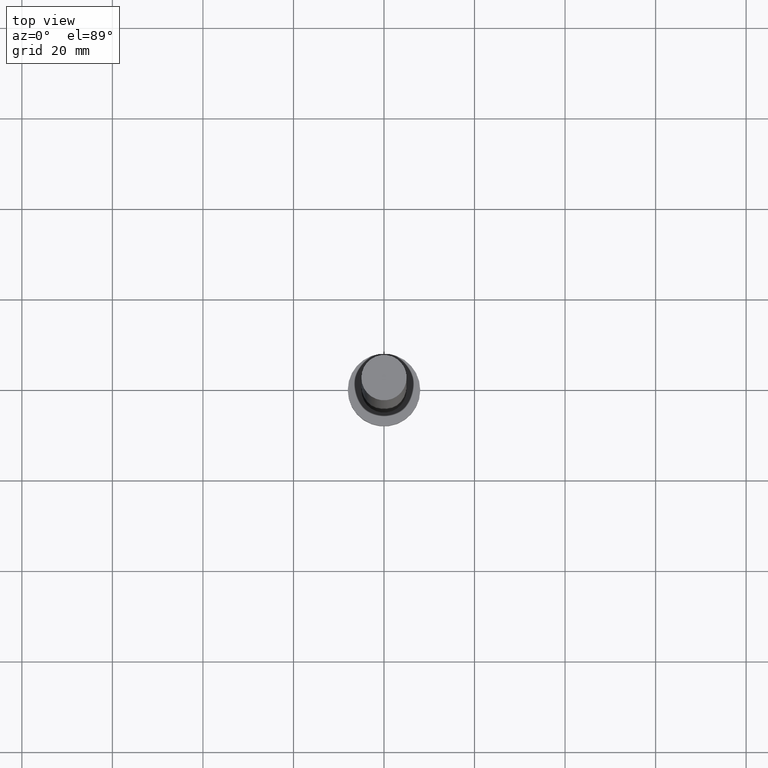
[diagram: clean part render]
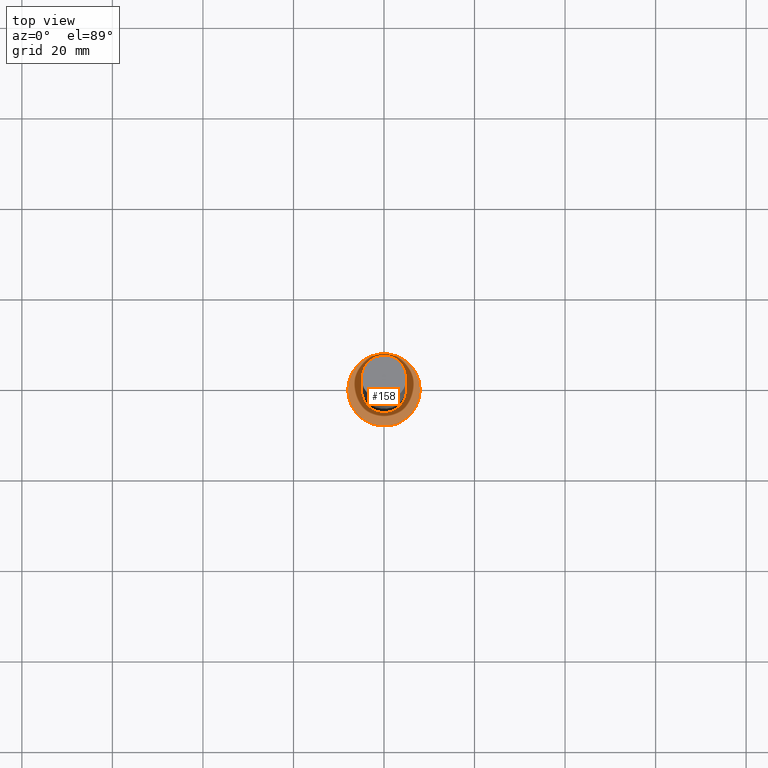
[diagram: same view with one face highlighted and labeled with its STEP entity id]
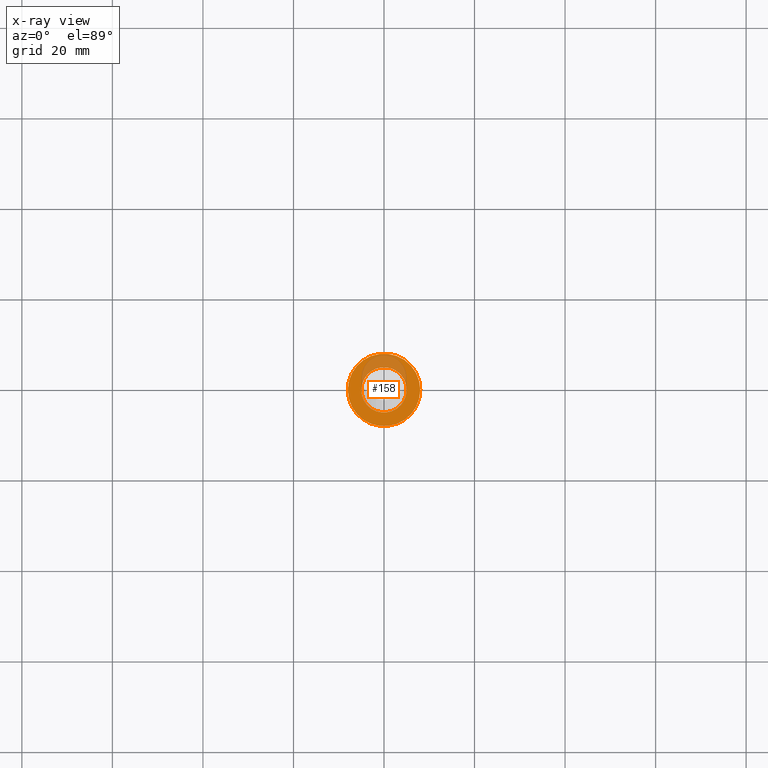
[diagram: x-ray of the same camera — body ghosted, the highlighted face saturated]
A machine part, top view. The second image highlights one B-rep face of the part: STEP entity #158.
The next image is the same camera in x-ray: the body ghosted, the highlighted face saturated — about 22% of this face is hidden behind the body in this view.
In plain terms, the highlighted planar face has unit normal (0, 0, 1).
Its self-contained STEP definition (entity closure, byte-faithful):
#15 = EDGE_CURVE ( 'NONE', #68, #213, #32, .T. ) ;
#32 = CIRCLE ( 'NONE', #108, 8.000000000000000000 ) ;
#33 = DIRECTION ( 'NONE',  ( 0.000000000000000000, 0.000000000000000000, 1.000000000000000000 ) ) ;
#43 = AXIS2_PLACEMENT_3D ( 'NONE', #159, #135, #137 ) ;
#47 = CIRCLE ( 'NONE', #242, 5.000000000000000000 ) ;
#48 = CARTESIAN_POINT ( 'NONE',  ( 0.000000000000000000, 0.000000000000000000, 5.000000000000000000 ) ) ;
#51 = EDGE_CURVE ( 'NONE', #152, #147, #107, .T. ) ;
#55 = CARTESIAN_POINT ( 'NONE',  ( 0.000000000000000000, 0.000000000000000000, 5.000000000000000000 ) ) ;
#62 = DIRECTION ( 'NONE',  ( 1.000000000000000000, 0.000000000000000000, -0.000000000000000000 ) ) ;
#68 = VERTEX_POINT ( 'NONE', #228 ) ;
#73 = CARTESIAN_POINT ( 'NONE',  ( 5.000000000000000000, 6.123233995736766282E-16, 5.000000000000000000 ) ) ;
#87 = ORIENTED_EDGE ( 'NONE', *, *, #146, .F. ) ;
#91 = ORIENTED_EDGE ( 'NONE', *, *, #15, .T. ) ;
#94 = ORIENTED_EDGE ( 'NONE', *, *, #189, .T. ) ;
#100 = FACE_OUTER_BOUND ( 'NONE', #153, .T. ) ;
#107 = CIRCLE ( 'NONE', #211, 5.000000000000000000 ) ;
#108 = AXIS2_PLACEMENT_3D ( 'NONE', #55, #33, #113 ) ;
#113 = DIRECTION ( 'NONE',  ( 1.000000000000000000, 0.000000000000000000, 0.000000000000000000 ) ) ;
#118 = CARTESIAN_POINT ( 'NONE',  ( 0.000000000000000000, 0.000000000000000000, 5.000000000000000000 ) ) ;
#131 = DIRECTION ( 'NONE',  ( 0.000000000000000000, 0.000000000000000000, 1.000000000000000000 ) ) ;
#135 = DIRECTION ( 'NONE',  ( 0.000000000000000000, 0.000000000000000000, 1.000000000000000000 ) ) ;
#137 = DIRECTION ( 'NONE',  ( 1.000000000000000000, 0.000000000000000000, 0.000000000000000000 ) ) ;
#146 = EDGE_CURVE ( 'NONE', #147, #152, #47, .T. ) ;
#147 = VERTEX_POINT ( 'NONE', #197 ) ;
#148 = AXIS2_PLACEMENT_3D ( 'NONE', #154, #254, #62 ) ;
#152 = VERTEX_POINT ( 'NONE', #73 ) ;
#153 = EDGE_LOOP ( 'NONE', ( #94, #91 ) ) ;
#154 = CARTESIAN_POINT ( 'NONE',  ( 0.000000000000000000, 0.000000000000000000, 5.000000000000000000 ) ) ;
#158 = ADVANCED_FACE ( 'NONE', ( #176, #100 ), #235, .T. ) ;
#159 = CARTESIAN_POINT ( 'NONE',  ( 0.000000000000000000, 0.000000000000000000, 5.000000000000000000 ) ) ;
#168 = EDGE_LOOP ( 'NONE', ( #87, #243 ) ) ;
#176 = FACE_BOUND ( 'NONE', #168, .T. ) ;
#177 = CIRCLE ( 'NONE', #43, 8.000000000000000000 ) ;
#189 = EDGE_CURVE ( 'NONE', #213, #68, #177, .T. ) ;
#193 = DIRECTION ( 'NONE',  ( 1.000000000000000000, 0.000000000000000000, 0.000000000000000000 ) ) ;
#196 = DIRECTION ( 'NONE',  ( 0.000000000000000000, 0.000000000000000000, 1.000000000000000000 ) ) ;
#197 = CARTESIAN_POINT ( 'NONE',  ( -5.000000000000000000, 0.000000000000000000, 5.000000000000000000 ) ) ;
#211 = AXIS2_PLACEMENT_3D ( 'NONE', #48, #131, #193 ) ;
#213 = VERTEX_POINT ( 'NONE', #234 ) ;
#228 = CARTESIAN_POINT ( 'NONE',  ( 8.000000000000000000, 9.797174393178825657E-16, 5.000000000000000000 ) ) ;
#234 = CARTESIAN_POINT ( 'NONE',  ( -8.000000000000000000, 0.000000000000000000, 5.000000000000000000 ) ) ;
#235 = PLANE ( 'NONE',  #148 ) ;
#238 = DIRECTION ( 'NONE',  ( 1.000000000000000000, 0.000000000000000000, 0.000000000000000000 ) ) ;
#242 = AXIS2_PLACEMENT_3D ( 'NONE', #118, #196, #238 ) ;
#243 = ORIENTED_EDGE ( 'NONE', *, *, #51, .F. ) ;
#254 = DIRECTION ( 'NONE',  ( 0.000000000000000000, 0.000000000000000000, 1.000000000000000000 ) ) ;